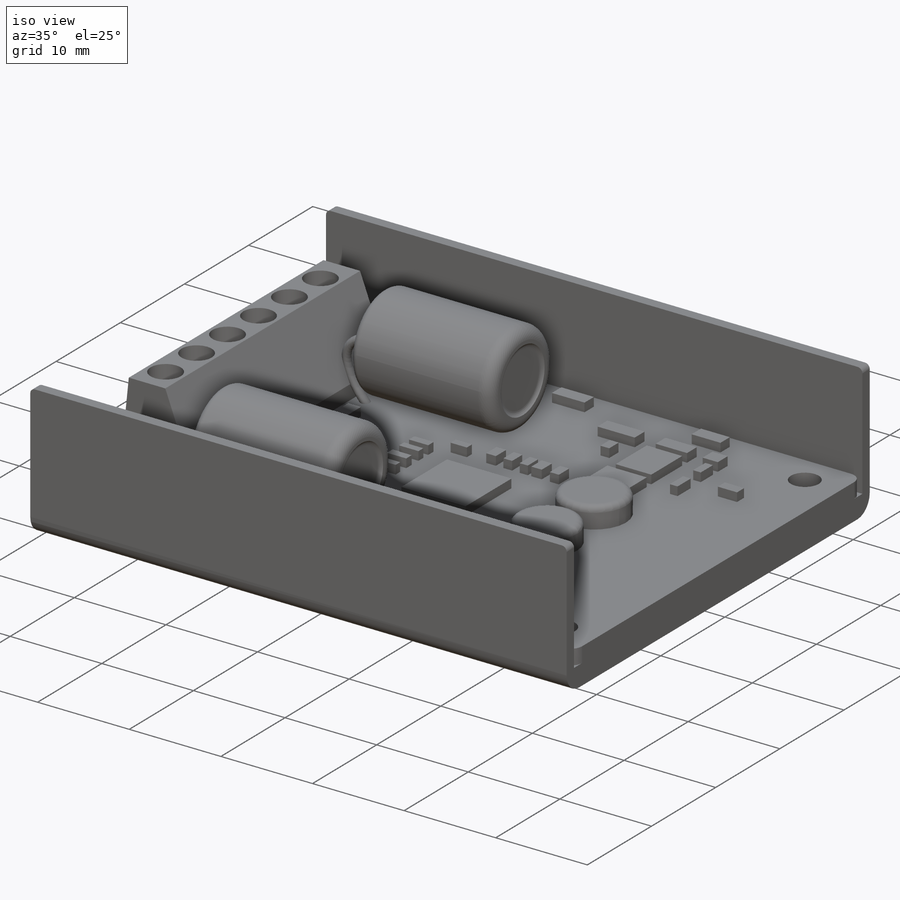
[diagram: iso view]
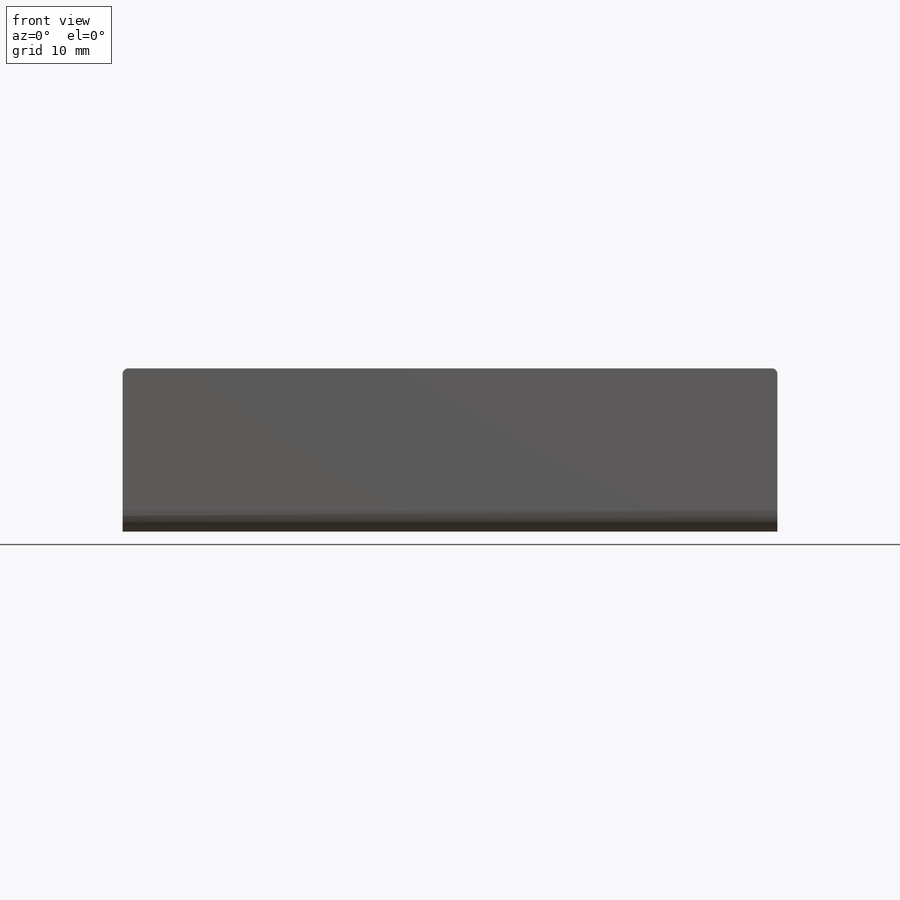
[diagram: front view]
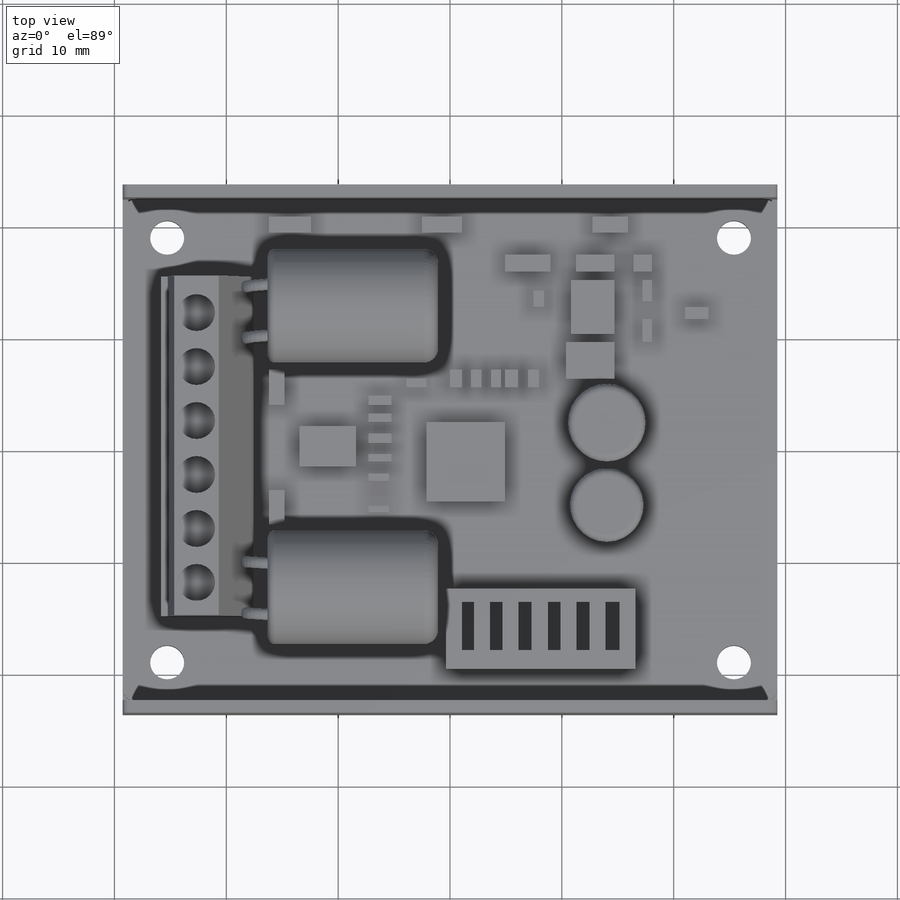
[diagram: top view]
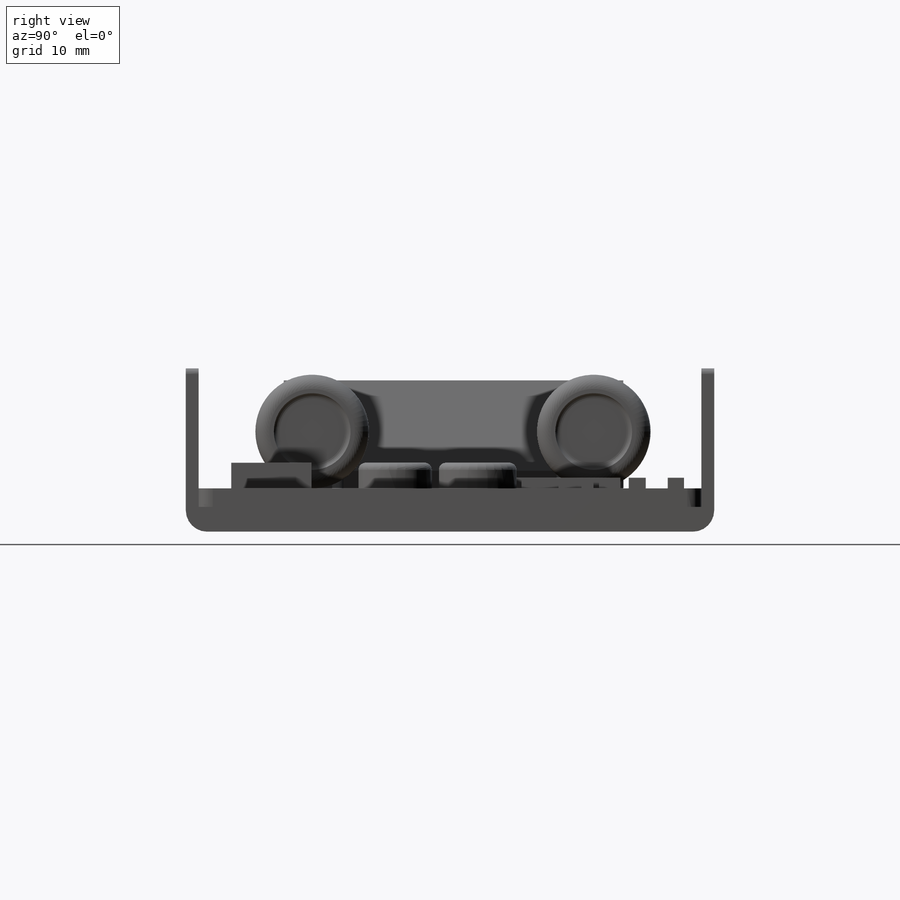
[diagram: right view]
SOLIDWORKS PART (.sldprt)
format: sldprt  version: not decoded by parser v0  size: 915,968 bytes
history: native  units: mm
features: sketch x14, fillet x8, extrude x7, cut_extrude x5, plane x2, material x1, sweep x1, mirror x1, pattern_linear x1 (+12 scaffold rows collapsed)
feature tree (52):
  scaffold x12  (default folders/planes/origin — collapsed)
  material  "Material <not specified>"
  sketch  "Sketch1"  dims[D1=58.547mm D2=44.958mm]
  extrude  "Boss-Extrude1"  Depth=1.651mm
  sketch  "Sketch2"  dims[D1=3.048mm D2=2.3622mm D3=1.905mm D4=34.925mm D5=47.625mm D6=47.625mm]
  cut_extrude  "Cut-Extrude1"  [1 undecoded]
  sketch  "Sketch4"  dims[D1=8.255mm D2=30.353mm D3=7.62mm D4=8.255mm]
  extrude  "Boss-Extrude2"  Depth=9.652mm
  sketch  "Sketch5"
  cut_extrude  "Cut-Extrude2"  [1 undecoded]
  plane  "Plane1"  Offset=1.27mm
  sketch  "Sketch6"  dims[c1.D1=10.16mm c1.D2=10.16mm c1.D3=10.16mm c2.D2=5.08mm c2.D3=2.54mm]
  extrude  "Boss-Extrude3"  Depth=15.24mm
  sketch  "Sketch7"  dims[D1=1.016mm D2=1.016mm]
  sketch  "3DSketch1"
  sweep  "Sweep1"
  plane  "Plane2"
  mirror  "Mirror4"
  sketch  "Sketch8"
  extrude  "Boss-Extrude6"  Depth=0.9525mm
  sketch  "Sketch9"  dims[D1=6.858mm]
  cut_extrude  "Cut-Extrude3"  Depth=0.254mm
  fillet  "Fillet1"  Radius=1.27mm
  fillet  "Fillet2"  Radius=1.27mm
  fillet  "Fillet3"  Radius=0.635mm
  fillet  "Fillet4"  Radius=0.635mm
  sketch  "Sketch10"
  extrude  "Boss-Extrude7"  Depth=2.286mm
  fillet  "Fillet5"  Radius=0.635mm
  sketch  "Sketch11"
  extrude  "Boss-Extrude8"  Depth=2.286mm
  sketch  "Sketch13"
  cut_extrude  "Cut-Extrude4"  Depth=1.524mm
  pattern_linear  "LPattern3"  Count1=6 Count2=1 Spacing1=4.826mm Spacing2=2.54mm
  fillet  "Fillet6"  Radius=1.27mm
  sketch  "Sketch14"  dims[D1=14.605mm D2=14.605mm D3=47.244mm]
  extrude  "Boss-Extrude9"  [1 undecoded]
  sketch  "Sketch15"
  cut_extrude  "Cut-Extrude6"  [1 undecoded]
  fillet  "Fillet7"  Radius=1.905mm
  fillet  "Fillet8"  Radius=0.508mm
decode coverage: 24 of 37 modeling features carry decoded parameters
note: 4 parameter values undecoded
summary: no parameter record found for 4 features
note: suppression state not decoded; provenance and decode notes live in map.json
